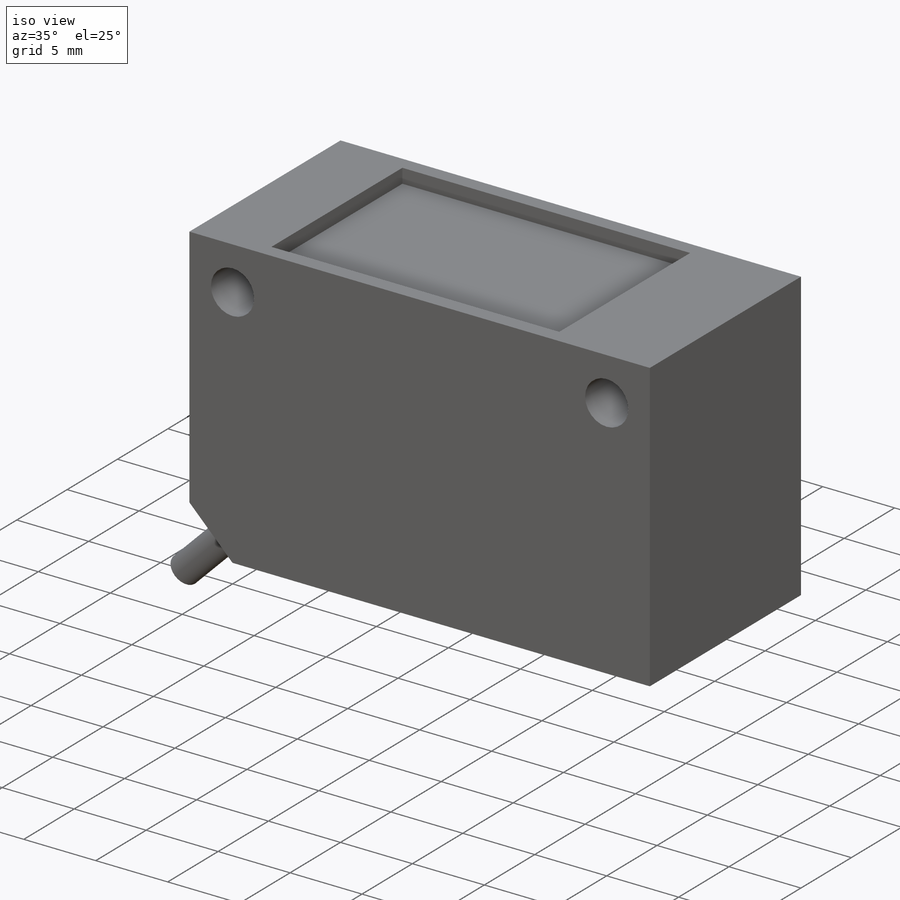
[diagram: iso view]
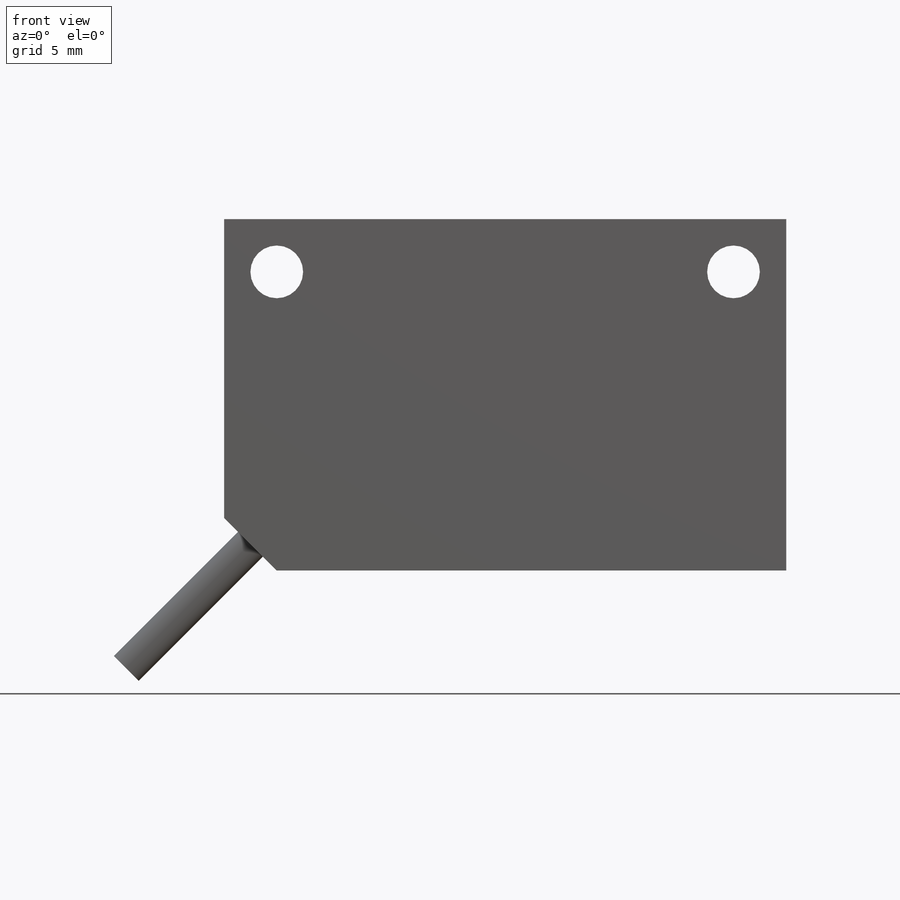
[diagram: front view]
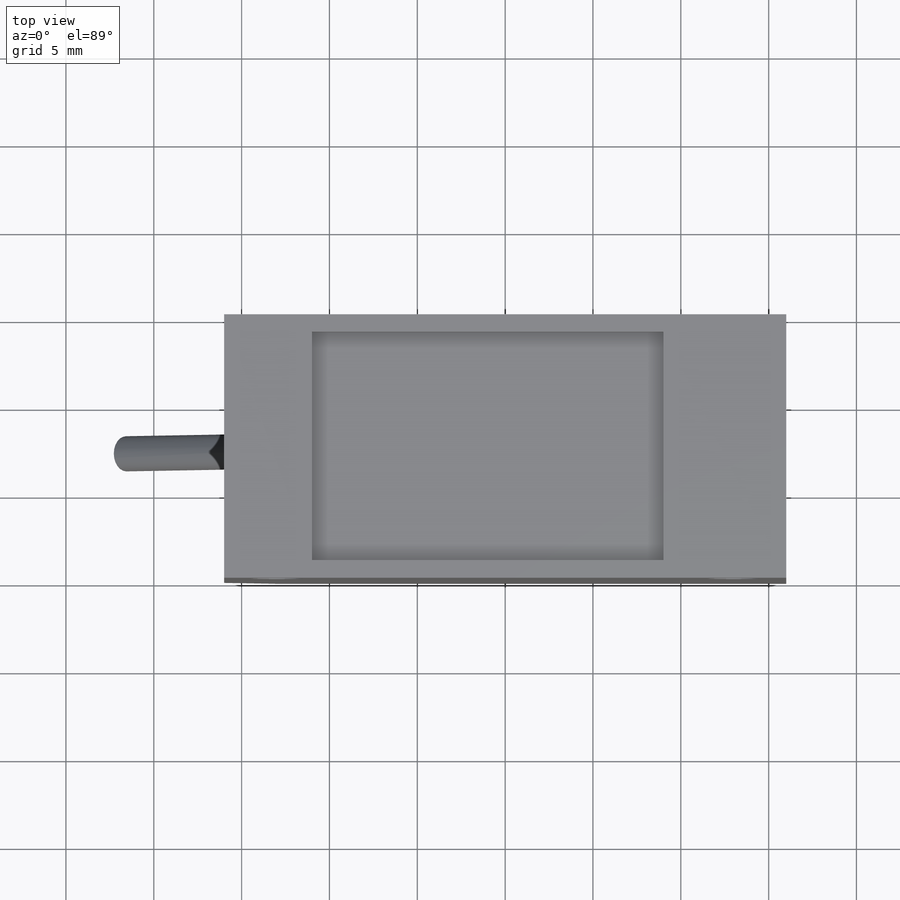
[diagram: top view]
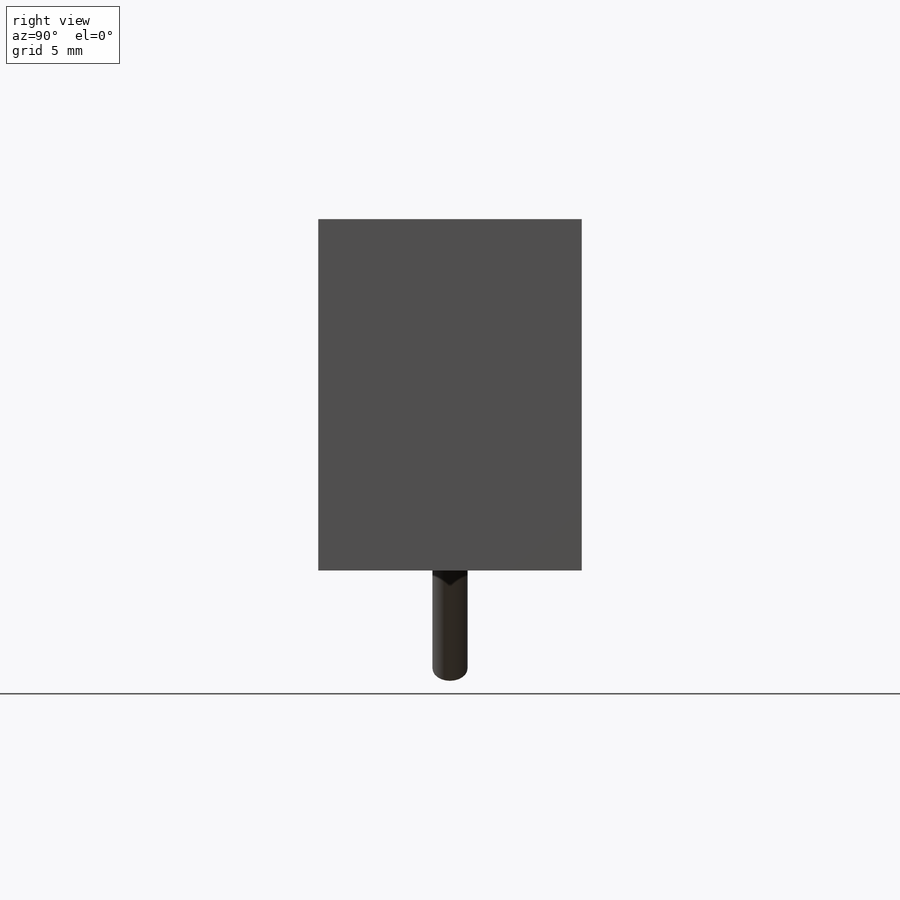
[diagram: right view]
SOLIDWORKS PART (.sldprt)
format: sldprt  version: not decoded by parser v0  size: 193,024 bytes
history: native  units: mm
features: sketch x4, plane x3, extrude x2, cut_extrude x2, material x1, mirror x1, chamfer x1 (+10 scaffold rows collapsed)
feature tree (24):
  scaffold x10  (default folders/planes/origin — collapsed)
  material  "Matériau <non spécifié>"
  plane  "Plan de face"
  plane  "Plan de dessus"
  plane  "Plan de droite"
  sketch  "Esquisse2"  dims[D1=32.0mm D2=20.0mm D3=16.0mm D4=10.0mm]
  extrude  "Boss.-Extru.1"  Depth=15mm
  sketch  "Esquisse3"  dims[c1.D1=3.0mm c1.D2=3.0mm c1.D3=3.0mm c2.D2=3.0mm c2.D3=3.0mm]
  cut_extrude  "Enlèv. mat.-Extru.1"  Depth=15mm
  mirror  "Symétrie1"
  chamfer  "Chanfrein1"  Distance=3mm Angle=45deg
  sketch  "Esquisse5"  dims[c1.D1=2.0mm c1.D2=2.0mm c1.D3=2.0mm c2.D2=2.12mm c2.D3=7.5mm]
  extrude  "Boss.-Extru.2"  Depth=10mm
  sketch  "Esquisse6"  dims[D1=13.0mm D2=1.0mm D3=5.0mm D4=7.0mm]
  cut_extrude  "Enlèv. mat.-Extru.2"  Depth=1mm
decode coverage: 9 of 10 modeling features carry decoded parameters
note: suppression state not decoded; provenance and decode notes live in map.json
